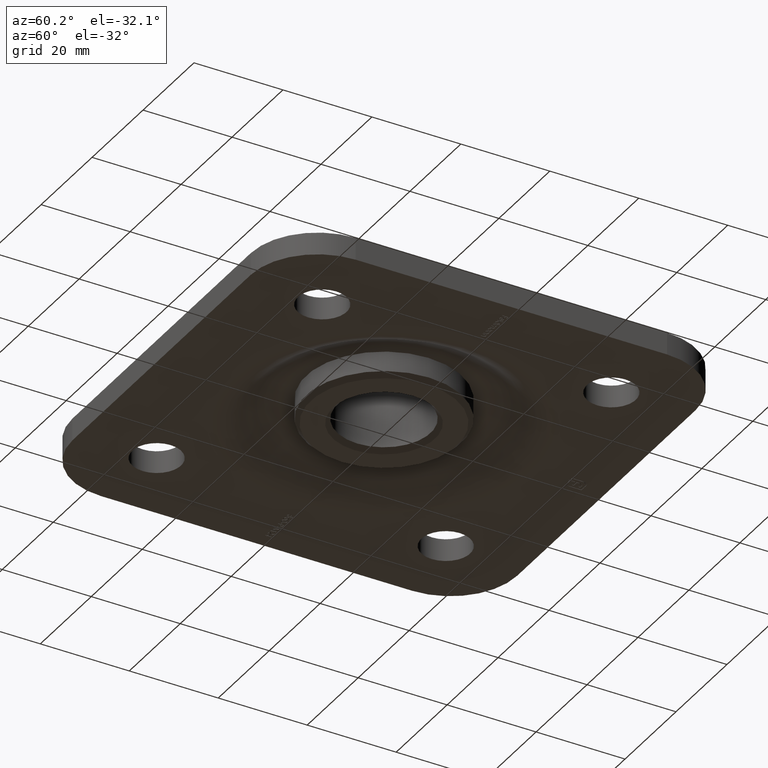
[diagram: clean part render]
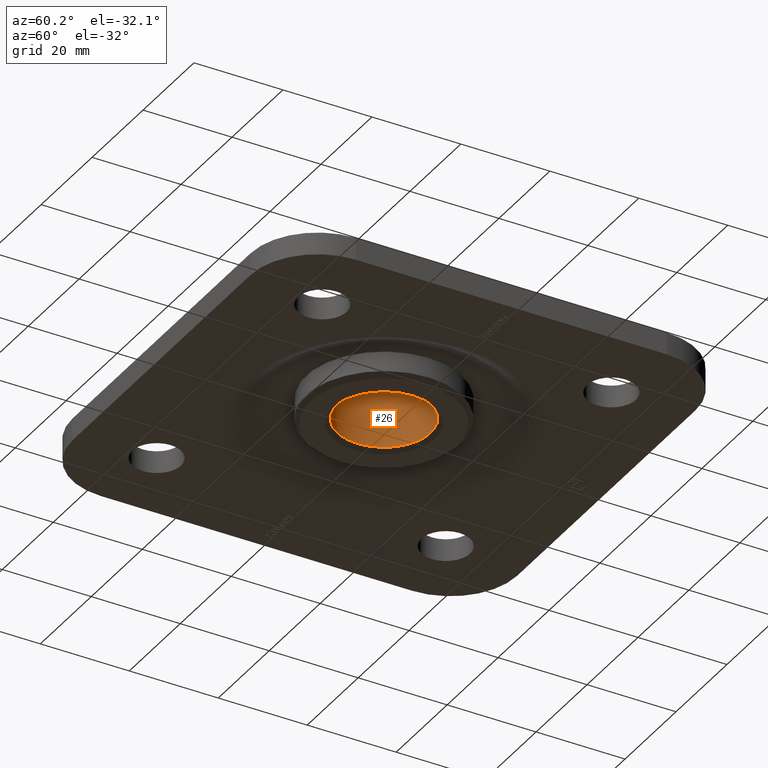
[diagram: same view with one face highlighted and labeled with its STEP entity id]
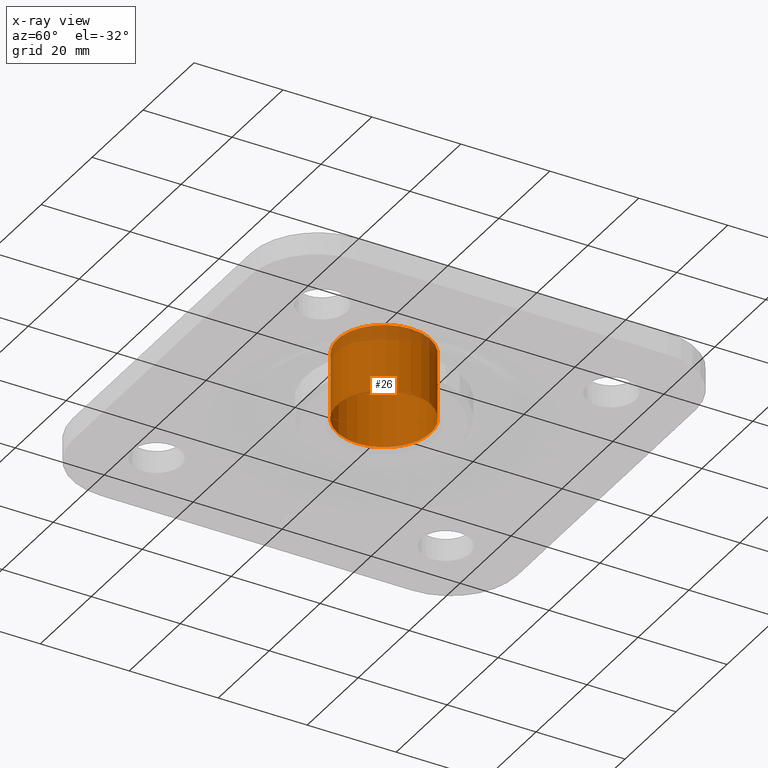
[diagram: x-ray of the same camera — body ghosted, the highlighted face saturated]
A machine part, auxiliary view. The second image highlights one B-rep face of the part: STEP entity #26.
The next image is the same camera in x-ray: the body ghosted, the highlighted face saturated — about 13% of this face is hidden behind the body in this view.
In plain terms, the highlighted cylindrical surface (bore or boss wall) has radius 10.5 mm, axis along (-0, -0, 1).
Its self-contained STEP definition (entity closure, byte-faithful):
#26 = ADVANCED_FACE ( 'NONE', ( #12726, #9753 ), #12134, .F. ) ;
#591 = ORIENTED_EDGE ( 'NONE', *, *, #11541, .T. ) ;
#663 = DIRECTION ( 'NONE',  ( -0.000000000000000000, -0.000000000000000000, 1.000000000000000000 ) ) ;
#808 = AXIS2_PLACEMENT_3D ( 'NONE', #14768, #663, #4122 ) ;
#2882 = CIRCLE ( 'NONE', #13208, 10.49999999999999822 ) ;
#3266 = ORIENTED_EDGE ( 'NONE', *, *, #4047, .T. ) ;
#3341 = CARTESIAN_POINT ( 'NONE',  ( 10.49999999999999822, 0.000000000000000000, 16.49999999999996803 ) ) ;
#3439 = VERTEX_POINT ( 'NONE', #3341 ) ;
#3926 = CARTESIAN_POINT ( 'NONE',  ( 0.000000000000000000, 0.000000000000000000, 1.499999999999990896 ) ) ;
#4047 = EDGE_CURVE ( 'NONE', #12099, #12099, #6527, .T. ) ;
#4122 = DIRECTION ( 'NONE',  ( 1.000000000000000000, 0.000000000000000000, 0.000000000000000000 ) ) ;
#4862 = AXIS2_PLACEMENT_3D ( 'NONE', #3926, #13291, #13598 ) ;
#6527 = CIRCLE ( 'NONE', #4862, 10.49999999999999822 ) ;
#9753 = FACE_OUTER_BOUND ( 'NONE', #11248, .T. ) ;
#10361 = CARTESIAN_POINT ( 'NONE',  ( 0.000000000000000000, 0.000000000000000000, 16.49999999999996803 ) ) ;
#11248 = EDGE_LOOP ( 'NONE', ( #3266 ) ) ;
#11430 = DIRECTION ( 'NONE',  ( -0.000000000000000000, -0.000000000000000000, 1.000000000000000000 ) ) ;
#11541 = EDGE_CURVE ( 'NONE', #3439, #3439, #2882, .T. ) ;
#12099 = VERTEX_POINT ( 'NONE', #12801 ) ;
#12134 = CYLINDRICAL_SURFACE ( 'NONE', #808, 10.49999999999999822 ) ;
#12692 = DIRECTION ( 'NONE',  ( 1.000000000000000000, 0.000000000000000000, 0.000000000000000000 ) ) ;
#12726 = FACE_OUTER_BOUND ( 'NONE', #12783, .T. ) ;
#12783 = EDGE_LOOP ( 'NONE', ( #591 ) ) ;
#12801 = CARTESIAN_POINT ( 'NONE',  ( -10.49999999999999822, 0.000000000000000000, 1.499999999999990896 ) ) ;
#13208 = AXIS2_PLACEMENT_3D ( 'NONE', #10361, #11430, #12692 ) ;
#13291 = DIRECTION ( 'NONE',  ( 0.000000000000000000, 0.000000000000000000, -1.000000000000000000 ) ) ;
#13598 = DIRECTION ( 'NONE',  ( -1.000000000000000000, 0.000000000000000000, 0.000000000000000000 ) ) ;
#14768 = CARTESIAN_POINT ( 'NONE',  ( 0.000000000000000000, 0.000000000000000000, 19.00000000000000000 ) ) ;